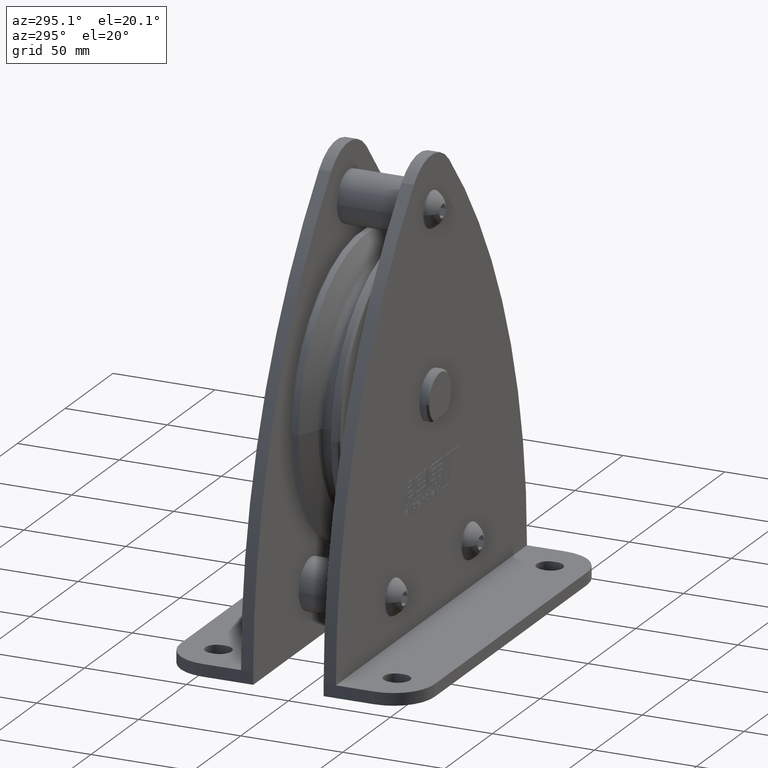
[diagram: clean part render]
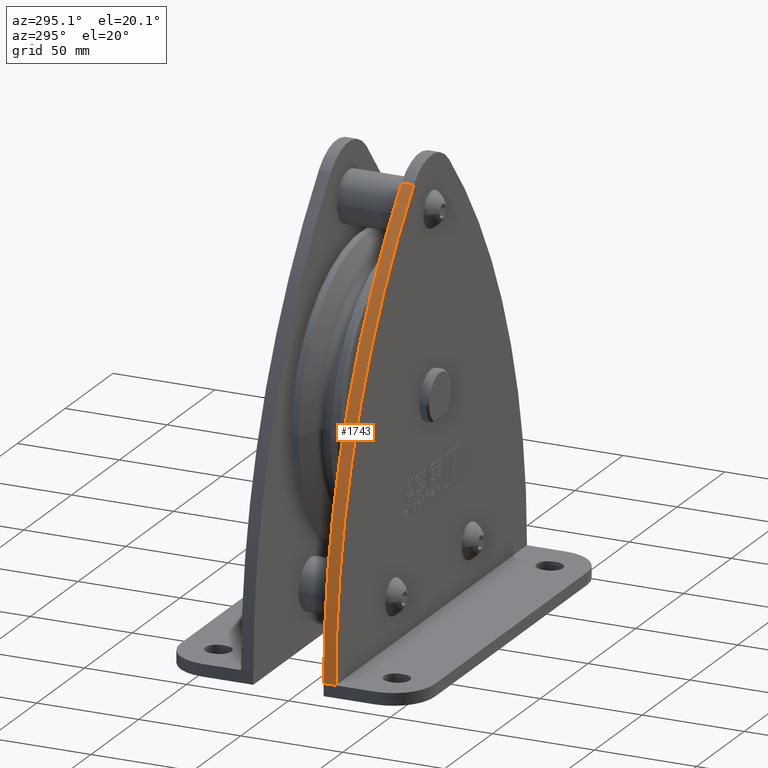
[diagram: same view with one face highlighted and labeled with its STEP entity id]
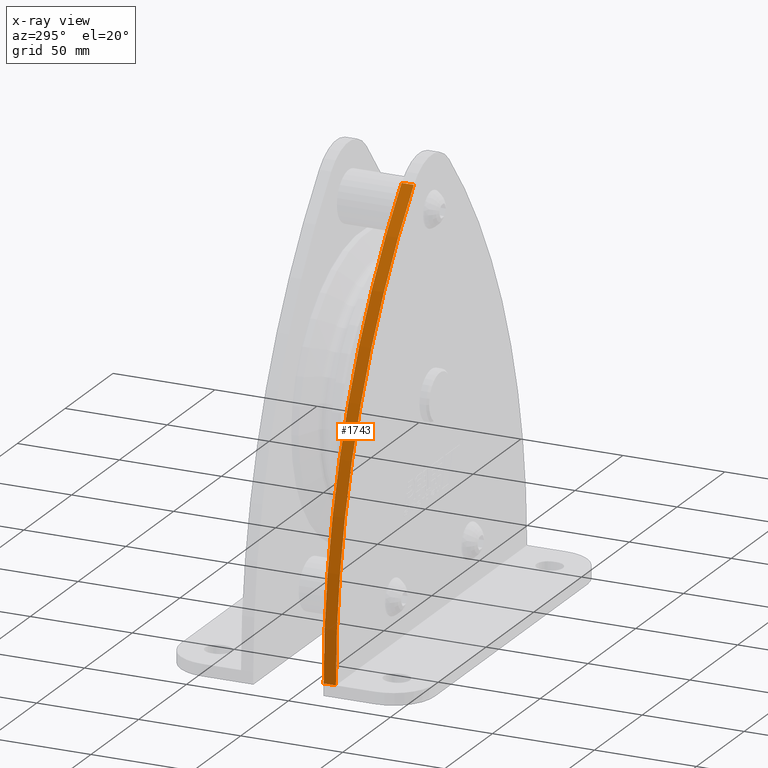
[diagram: x-ray of the same camera — body ghosted, the highlighted face saturated]
A machine part, auxiliary view. The second image highlights one B-rep face of the part: STEP entity #1743.
The next image is the same camera in x-ray: the body ghosted, the highlighted face saturated — about 0% of this face is hidden behind the body in this view.
In plain terms, the highlighted cylindrical surface (partial cylindrical patch) has radius 310 mm, axis along (0, -1, 0).
Its self-contained STEP definition (entity closure, byte-faithful):
#1743=ADVANCED_FACE('',(#3677),#3678,.T.);
#3677=FACE_OUTER_BOUND('',#5783,.T.);
#3678=CYLINDRICAL_SURFACE('',#5784,309.999999979699);
#5783=EDGE_LOOP('',(#11330,#11331,#11332,#11333));
#5784=AXIS2_PLACEMENT_3D('',#11334,#11335,#11336);
#11330=ORIENTED_EDGE('',*,*,#13390,.T.);
#11331=ORIENTED_EDGE('',*,*,#14617,.F.);
#11332=ORIENTED_EDGE('',*,*,#14618,.T.);
#11333=ORIENTED_EDGE('',*,*,#14614,.T.);
#11334=CARTESIAN_POINT('',(209.999999979699,-17.25,-103.9999999978));
#11335=DIRECTION('',(0.0,-1.0,0.0));
#11336=DIRECTION('',(-0.736842105240575,0.0,0.676064872585936));
#13390=EDGE_CURVE('',#16488,#16493,#16495,.T.);
#14614=EDGE_CURVE('',#18131,#16488,#18132,.T.);
#14617=EDGE_CURVE('',#18135,#16493,#18136,.T.);
#14618=EDGE_CURVE('',#18135,#18131,#18137,.T.);
#16488=VERTEX_POINT('',#22825);
#16493=VERTEX_POINT('',#22831);
#16495=CIRCLE('',#22833,309.999999979699);
#18131=VERTEX_POINT('',#25846);
#18132=LINE('',#25847,#25848);
#18135=VERTEX_POINT('',#25852);
#18136=LINE('',#25853,#25854);
#18137=CIRCLE('',#25855,309.999999979699);
#22825=CARTESIAN_POINT('',(-100.0,-23.25,-103.999999999964));
#22831=CARTESIAN_POINT('',(-18.421052630019,-23.25,105.580110489983));
#22833=AXIS2_PLACEMENT_3D('',#27815,#27816,#27817);
#25846=CARTESIAN_POINT('',(-100.0,-17.25,-103.999999999964));
#25847=CARTESIAN_POINT('',(-100.0,-17.25,-103.999999999964));
#25848=VECTOR('',#28964,1.0);
#25852=CARTESIAN_POINT('',(-18.421052630019,-17.25,105.580110489983));
#25853=CARTESIAN_POINT('',(-18.421052630019,-17.25,105.580110489983));
#25854=VECTOR('',#28966,1.0);
#25855=AXIS2_PLACEMENT_3D('',#28967,#28968,#28969);
#27815=CARTESIAN_POINT('',(209.999999979699,-23.25,-103.9999999978));
#27816=DIRECTION('',(0.0,1.0,-0.0));
#27817=DIRECTION('',(-0.736842105240575,0.0,0.676064872585936));
#28964=DIRECTION('',(0.0,-1.0,0.0));
#28966=DIRECTION('',(0.0,-1.0,0.0));
#28967=CARTESIAN_POINT('',(209.999999979699,-17.25,-103.9999999978));
#28968=DIRECTION('',(0.0,-1.0,0.0));
#28969=DIRECTION('',(-0.736842105240575,0.0,0.676064872585936));